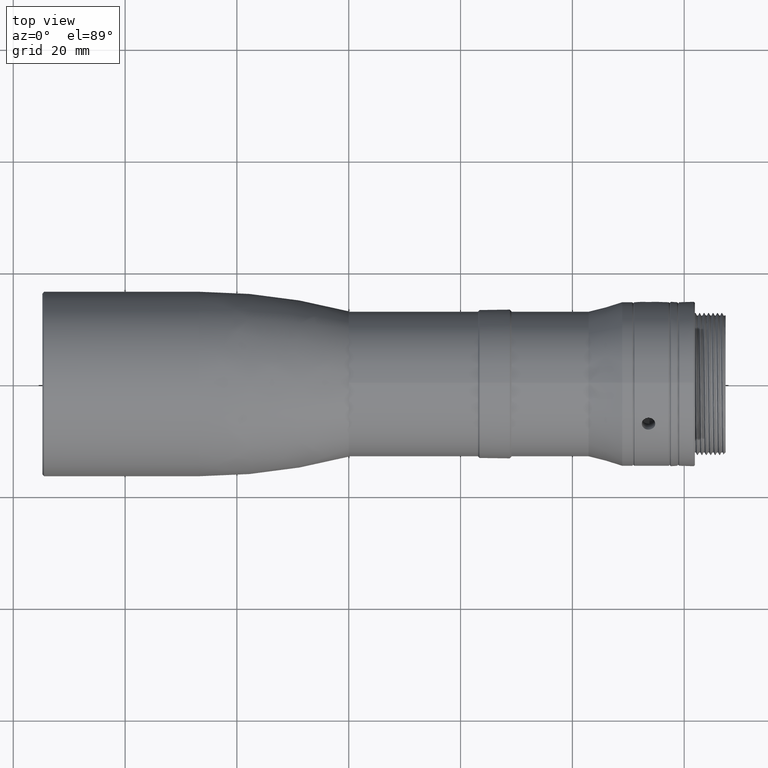
[diagram: clean part render]
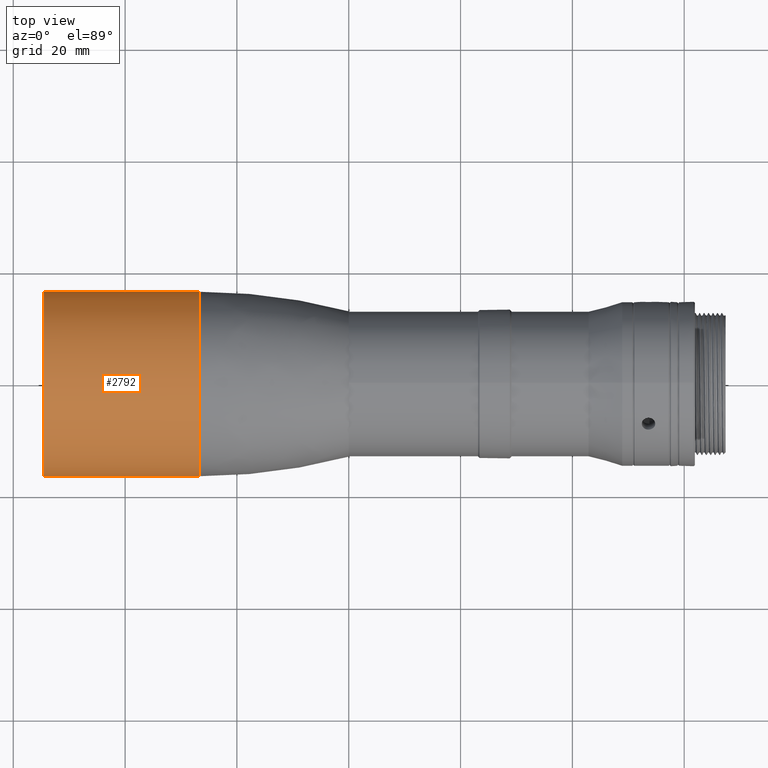
[diagram: same view with one face highlighted and labeled with its STEP entity id]
A machine part, top view. The second image highlights one B-rep face of the part: STEP entity #2792.
In plain terms, the highlighted cylindrical surface (partial cylindrical patch) has radius 16.5 mm, axis along (1, 0, 0).
Its self-contained STEP definition (entity closure, byte-faithful):
#86 = DIRECTION ( 'NONE',  ( -4.205390244792259832E-16, 1.000000000000000000, 0.000000000000000000 ) ) ;
#175 = EDGE_CURVE ( 'NONE', #17848, #16415, #7458, .T. ) ;
#718 = DIRECTION ( 'NONE',  ( 1.000000000000000000, 0.000000000000000000, 0.000000000000000000 ) ) ;
#1031 = CIRCLE ( 'NONE', #4989, 16.50000000000010658 ) ;
#1596 = CARTESIAN_POINT ( 'NONE',  ( -26.80000000002000249, -16.49999999965814013, -7.418881125470027326E-05 ) ) ;
#2508 = EDGE_CURVE ( 'NONE', #14887, #16838, #13008, .T. ) ;
#2792 = ADVANCED_FACE ( 'NONE', ( #10194 ), #11416, .T. ) ;
#3123 = CARTESIAN_POINT ( 'NONE',  ( -54.50000000000000711, 16.50000000000000000, 0.000000000000000000 ) ) ;
#3382 = CARTESIAN_POINT ( 'NONE',  ( -54.50000000000000711, 8.872571318680001538E-14, 9.947598300640999968E-14 ) ) ;
#4989 = AXIS2_PLACEMENT_3D ( 'NONE', #3382, #718, #6541 ) ;
#5025 = DIRECTION ( 'NONE',  ( 0.000000000000000000, 0.000000000000000000, 1.000000000000000000 ) ) ;
#5045 = DIRECTION ( 'NONE',  ( 1.000000000000000000, 2.102695122396129669E-16, 0.000000000000000000 ) ) ;
#5743 = AXIS2_PLACEMENT_3D ( 'NONE', #14555, #5910, #86 ) ;
#5795 = LINE ( 'NONE', #3123, #11056 ) ;
#5821 = ORIENTED_EDGE ( 'NONE', *, *, #6225, .T. ) ;
#5910 = DIRECTION ( 'NONE',  ( 1.000000000000000000, 2.102695122396129669E-16, 0.000000000000000000 ) ) ;
#6091 = DIRECTION ( 'NONE',  ( 1.000000000000000000, 2.102695122396129669E-16, 0.000000000000000000 ) ) ;
#6225 = EDGE_CURVE ( 'NONE', #7702, #14887, #1031, .T. ) ;
#6473 = LINE ( 'NONE', #12262, #15641 ) ;
#6541 = DIRECTION ( 'NONE',  ( 0.000000000000000000, 0.000000000000000000, -1.000000000000000000 ) ) ;
#6776 = CARTESIAN_POINT ( 'NONE',  ( -26.79999958350422418, 16.49999999965814368, 7.418880885254002899E-05 ) ) ;
#7044 = CARTESIAN_POINT ( 'NONE',  ( -54.50000000000000711, -16.50000000000001421, 2.020667218593023448E-15 ) ) ;
#7458 = CIRCLE ( 'NONE', #13518, 16.50000000000000000 ) ;
#7702 = VERTEX_POINT ( 'NONE', #18518 ) ;
#8681 = ORIENTED_EDGE ( 'NONE', *, *, #14659, .T. ) ;
#9501 = EDGE_CURVE ( 'NONE', #7702, #17848, #5795, .T. ) ;
#10194 = FACE_OUTER_BOUND ( 'NONE', #13542, .T. ) ;
#10266 = CARTESIAN_POINT ( 'NONE',  ( -54.50000000000000711, 9.074638040539314533E-14, 16.50000000000019540 ) ) ;
#10768 = ORIENTED_EDGE ( 'NONE', *, *, #175, .F. ) ;
#11056 = VECTOR ( 'NONE', #6091, 1000.000000000000000 ) ;
#11416 = CYLINDRICAL_SURFACE ( 'NONE', #5743, 16.50000000000000000 ) ;
#12108 = DIRECTION ( 'NONE',  ( 1.000000000000000000, 0.000000000000000000, 0.000000000000000000 ) ) ;
#12208 = ORIENTED_EDGE ( 'NONE', *, *, #9501, .F. ) ;
#12262 = CARTESIAN_POINT ( 'NONE',  ( -54.49999999999999289, -16.50000000000000000, 2.020667218593133100E-15 ) ) ;
#12347 = CARTESIAN_POINT ( 'NONE',  ( -26.80000000001999894, 0.000000000000000000, 0.000000000000000000 ) ) ;
#13008 = CIRCLE ( 'NONE', #18200, 16.50000000000010658 ) ;
#13518 = AXIS2_PLACEMENT_3D ( 'NONE', #12347, #18061, #5025 ) ;
#13542 = EDGE_LOOP ( 'NONE', ( #5821, #16392, #8681, #10768, #12208 ) ) ;
#14555 = CARTESIAN_POINT ( 'NONE',  ( -54.50000000000000000, 0.000000000000000000, 0.000000000000000000 ) ) ;
#14659 = EDGE_CURVE ( 'NONE', #16838, #16415, #6473, .T. ) ;
#14887 = VERTEX_POINT ( 'NONE', #10266 ) ;
#15140 = CARTESIAN_POINT ( 'NONE',  ( -54.50000000000000711, 8.872571318680001538E-14, 9.947598300640999968E-14 ) ) ;
#15641 = VECTOR ( 'NONE', #5045, 1000.000000000000000 ) ;
#16384 = DIRECTION ( 'NONE',  ( 0.000000000000000000, 0.000000000000000000, -1.000000000000000000 ) ) ;
#16392 = ORIENTED_EDGE ( 'NONE', *, *, #2508, .T. ) ;
#16415 = VERTEX_POINT ( 'NONE', #1596 ) ;
#16838 = VERTEX_POINT ( 'NONE', #7044 ) ;
#17848 = VERTEX_POINT ( 'NONE', #6776 ) ;
#18061 = DIRECTION ( 'NONE',  ( 1.000000000000000000, 0.000000000000000000, 0.000000000000000000 ) ) ;
#18200 = AXIS2_PLACEMENT_3D ( 'NONE', #15140, #12108, #16384 ) ;
#18518 = CARTESIAN_POINT ( 'NONE',  ( -54.50000000000000711, 16.50000000000019540, -1.146313502899282780E-27 ) ) ;